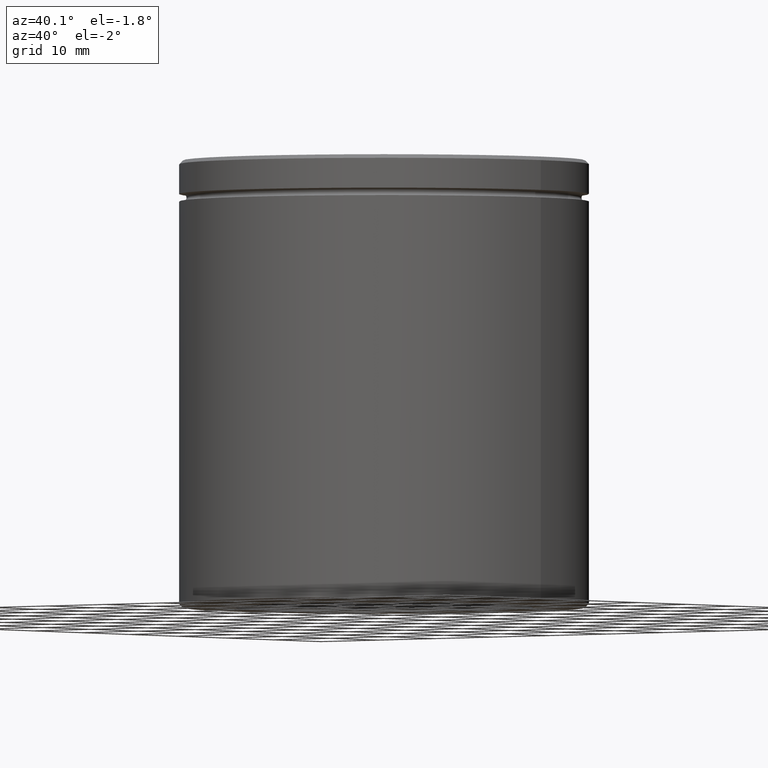
[diagram: clean part render]
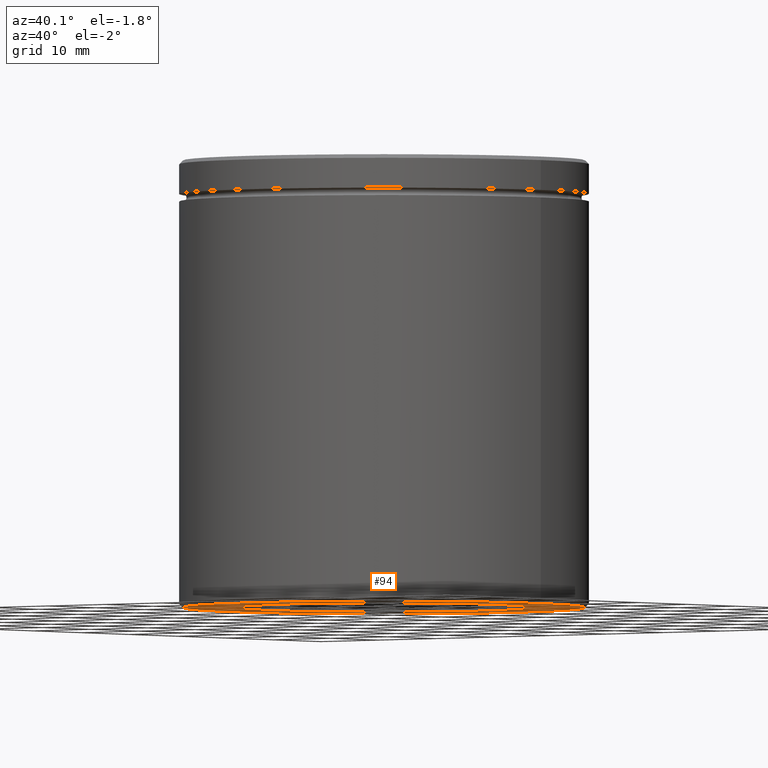
[diagram: same view with one face highlighted and labeled with its STEP entity id]
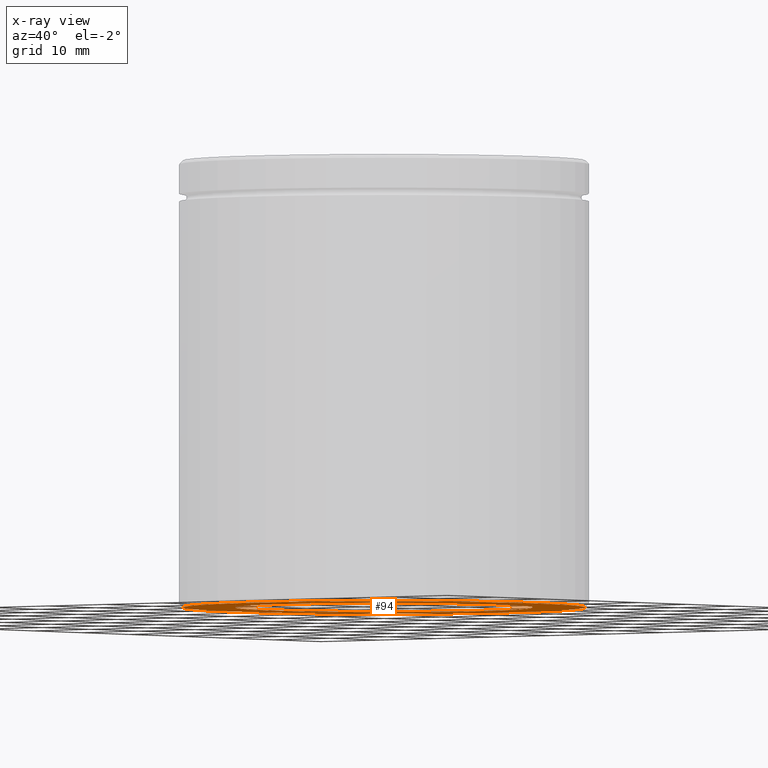
[diagram: x-ray of the same camera — body ghosted, the highlighted face saturated]
A machine part, auxiliary view. The second image highlights one B-rep face of the part: STEP entity #94.
The next image is the same camera in x-ray: the body ghosted, the highlighted face saturated — about 0% of this face is hidden behind the body in this view.
In plain terms, the highlighted planar face has unit normal (0, 0, -1).
Its self-contained STEP definition (entity closure, byte-faithful):
#9 = ORIENTED_EDGE ( 'NONE', *, *, #166, .T. ) ;
#13 = EDGE_CURVE ( 'NONE', #356, #535, #221, .T. ) ;
#27 = CIRCLE ( 'NONE', #502, 20.00000000000000000 ) ;
#58 = DIRECTION ( 'NONE',  ( -1.000000000000000000, 0.000000000000000000, 0.000000000000000000 ) ) ;
#94 = ADVANCED_FACE ( 'NONE', ( #464, #255 ), #561, .T. ) ;
#102 = EDGE_LOOP ( 'NONE', ( #9, #419 ) ) ;
#104 = DIRECTION ( 'NONE',  ( -1.000000000000000000, 0.000000000000000000, 0.000000000000000000 ) ) ;
#117 = CARTESIAN_POINT ( 'NONE',  ( 0.000000000000000000, 0.000000000000000000, -60.00000000000000000 ) ) ;
#155 = CARTESIAN_POINT ( 'NONE',  ( 0.000000000000000000, 0.000000000000000000, -60.00000000000000000 ) ) ;
#166 = EDGE_CURVE ( 'NONE', #468, #552, #258, .T. ) ;
#167 = DIRECTION ( 'NONE',  ( -1.000000000000000000, 0.000000000000000000, -0.000000000000000000 ) ) ;
#193 = CARTESIAN_POINT ( 'NONE',  ( -20.00000000000000000, 0.000000000000000000, -60.00000000000000000 ) ) ;
#221 = CIRCLE ( 'NONE', #232, 20.00000000000000000 ) ;
#223 = ORIENTED_EDGE ( 'NONE', *, *, #482, .F. ) ;
#232 = AXIS2_PLACEMENT_3D ( 'NONE', #155, #366, #58 ) ;
#245 = DIRECTION ( 'NONE',  ( 0.000000000000000000, 0.000000000000000000, -1.000000000000000000 ) ) ;
#252 = EDGE_LOOP ( 'NONE', ( #490, #223 ) ) ;
#255 = FACE_BOUND ( 'NONE', #252, .T. ) ;
#258 = CIRCLE ( 'NONE', #283, 27.00000000000002487 ) ;
#261 = DIRECTION ( 'NONE',  ( -1.000000000000000000, 0.000000000000000000, 0.000000000000000000 ) ) ;
#283 = AXIS2_PLACEMENT_3D ( 'NONE', #117, #293, #261 ) ;
#293 = DIRECTION ( 'NONE',  ( 0.000000000000000000, 0.000000000000000000, -1.000000000000000000 ) ) ;
#325 = CARTESIAN_POINT ( 'NONE',  ( 27.00000000000002487, 0.000000000000000000, -60.00000000000000000 ) ) ;
#331 = CARTESIAN_POINT ( 'NONE',  ( 0.000000000000000000, 0.000000000000000000, -60.00000000000000000 ) ) ;
#339 = DIRECTION ( 'NONE',  ( 0.000000000000000000, 0.000000000000000000, -1.000000000000000000 ) ) ;
#356 = VERTEX_POINT ( 'NONE', #193 ) ;
#366 = DIRECTION ( 'NONE',  ( 0.000000000000000000, 0.000000000000000000, -1.000000000000000000 ) ) ;
#385 = EDGE_CURVE ( 'NONE', #552, #468, #553, .T. ) ;
#398 = CARTESIAN_POINT ( 'NONE',  ( -27.00000000000002487, 3.337162527676539098E-15, -60.00000000000000000 ) ) ;
#407 = CARTESIAN_POINT ( 'NONE',  ( 20.00000000000000000, 2.449293598294706119E-15, -60.00000000000000000 ) ) ;
#412 = DIRECTION ( 'NONE',  ( -1.000000000000000000, 0.000000000000000000, 0.000000000000000000 ) ) ;
#415 = DIRECTION ( 'NONE',  ( 0.000000000000000000, 0.000000000000000000, -1.000000000000000000 ) ) ;
#419 = ORIENTED_EDGE ( 'NONE', *, *, #385, .T. ) ;
#460 = CARTESIAN_POINT ( 'NONE',  ( 0.000000000000000000, 0.000000000000000000, -60.00000000000000000 ) ) ;
#464 = FACE_OUTER_BOUND ( 'NONE', #102, .T. ) ;
#465 = AXIS2_PLACEMENT_3D ( 'NONE', #473, #339, #167 ) ;
#468 = VERTEX_POINT ( 'NONE', #325 ) ;
#473 = CARTESIAN_POINT ( 'NONE',  ( 0.000000000000000000, 27.50000000000000000, -60.00000000000000000 ) ) ;
#482 = EDGE_CURVE ( 'NONE', #535, #356, #27, .T. ) ;
#490 = ORIENTED_EDGE ( 'NONE', *, *, #13, .F. ) ;
#502 = AXIS2_PLACEMENT_3D ( 'NONE', #331, #245, #412 ) ;
#519 = AXIS2_PLACEMENT_3D ( 'NONE', #460, #415, #104 ) ;
#535 = VERTEX_POINT ( 'NONE', #407 ) ;
#552 = VERTEX_POINT ( 'NONE', #398 ) ;
#553 = CIRCLE ( 'NONE', #519, 27.00000000000002487 ) ;
#561 = PLANE ( 'NONE',  #465 ) ;